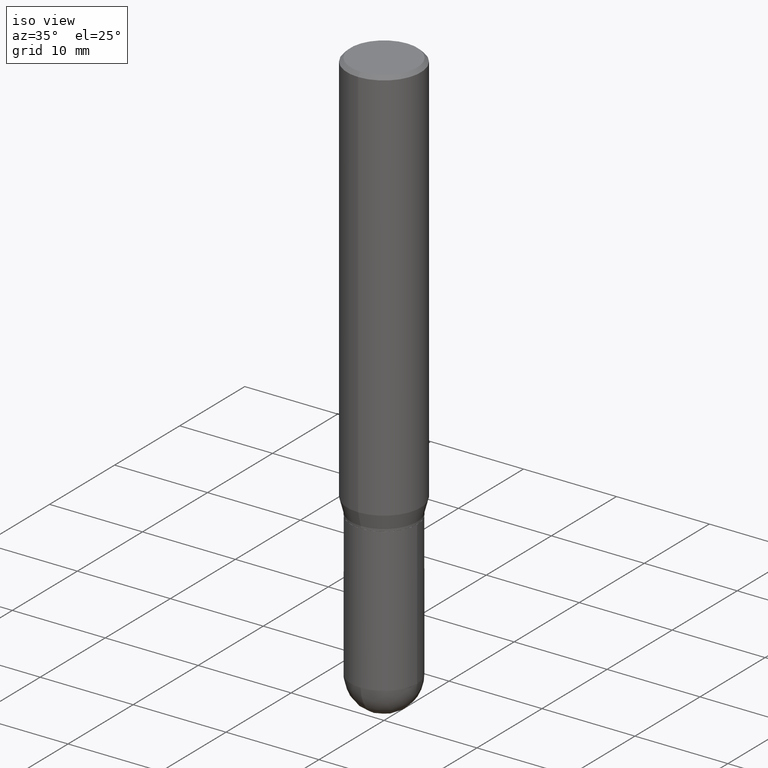
[diagram: clean part render]
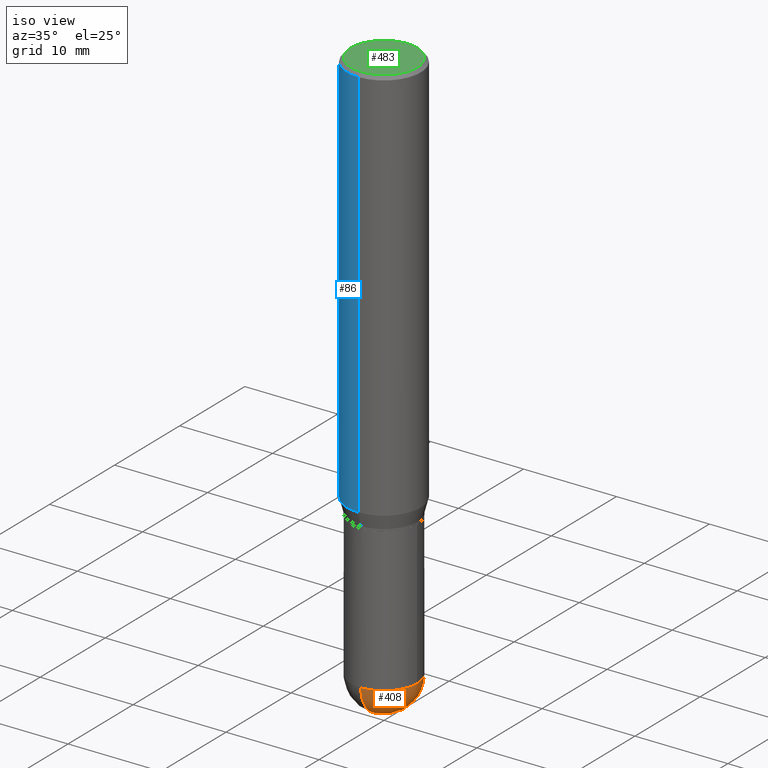
[diagram: same view with three faces highlighted in distinct colors, each labeled with its STEP entity id]
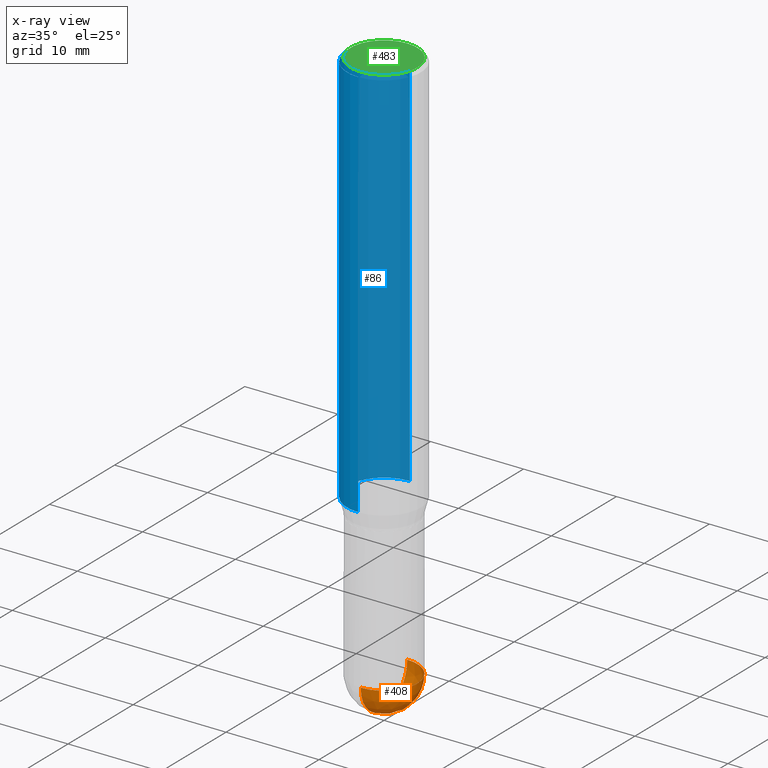
[diagram: x-ray of the same camera — body ghosted, the three highlighted faces saturated]
A machine part, iso view with three faces highlighted in distinct colors.
The next image is the same camera in x-ray (body ghosted, the three faces saturated) — at least one of them is partly hidden behind the body in this view.
Their STEP definitions:

[orange] entity #408 — the highlighted spherical surface has radius 3.5712 mm.
#12 = AXIS2_PLACEMENT_3D ( 'NONE', #504, #216, #428 ) ;
#23 = EDGE_CURVE ( 'NONE', #416, #292, #442, .T. ) ;
#34 = CARTESIAN_POINT ( 'NONE',  ( 5.769839101313211634E-29, -8.237801070866517629E-15, -2.359399999999999942 ) ) ;
#47 = DIRECTION ( 'NONE',  ( -7.105427357601001859E-15, -1.000000000000000000, 0.000000000000000000 ) ) ;
#48 = EDGE_CURVE ( 'NONE', #328, #292, #112, .T. ) ;
#59 = AXIS2_PLACEMENT_3D ( 'NONE', #279, #87, #47 ) ;
#87 = DIRECTION ( 'NONE',  ( -1.000000000000000000, 7.105427357601001070E-15, -4.926315508542082329E-29 ) ) ;
#112 = CIRCLE ( 'NONE', #399, 0.1406000000000000860 ) ;
#129 = DIRECTION ( 'NONE',  ( 1.000000000000000000, -6.982962677686270655E-15, 0.000000000000000000 ) ) ;
#131 = ORIENTED_EDGE ( 'NONE', *, *, #23, .F. ) ;
#154 = CARTESIAN_POINT ( 'NONE',  ( 0.1406000000000000583, -8.155751259403701439E-15, -2.359399999999999942 ) ) ;
#163 = CARTESIAN_POINT ( 'NONE',  ( 5.757815463287349061E-29, -8.255019604862529009E-15, -2.359399999999999942 ) ) ;
#188 = FACE_OUTER_BOUND ( 'NONE', #234, .T. ) ;
#189 = DIRECTION ( 'NONE',  ( 1.000000000000000000, -6.982962677686265922E-15, 4.883557194083112340E-29 ) ) ;
#201 = CIRCLE ( 'NONE', #489, 0.1406000000000000305 ) ;
#216 = DIRECTION ( 'NONE',  ( -2.445468806185136597E-29, 3.491481338843145583E-15, 1.000000000000000000 ) ) ;
#234 = EDGE_LOOP ( 'NONE', ( #331, #401, #131, #315 ) ) ;
#279 = CARTESIAN_POINT ( 'NONE',  ( 5.757815463287349061E-29, -8.255019604862529009E-15, -2.359399999999999942 ) ) ;
#281 = VERTEX_POINT ( 'NONE', #385 ) ;
#292 = VERTEX_POINT ( 'NONE', #375 ) ;
#311 = DIRECTION ( 'NONE',  ( -2.445468806185136597E-29, 3.491481338843145583E-15, 1.000000000000000000 ) ) ;
#313 = DIRECTION ( 'NONE',  ( 6.982962677686266711E-15, 1.000000000000000000, 0.000000000000000000 ) ) ;
#315 = ORIENTED_EDGE ( 'NONE', *, *, #450, .F. ) ;
#328 = VERTEX_POINT ( 'NONE', #470 ) ;
#329 = AXIS2_PLACEMENT_3D ( 'NONE', #350, #511, #439 ) ;
#331 = ORIENTED_EDGE ( 'NONE', *, *, #463, .F. ) ;
#350 = CARTESIAN_POINT ( 'NONE',  ( 5.757815463287349061E-29, -8.255019604862529009E-15, -2.359399999999999942 ) ) ;
#375 = CARTESIAN_POINT ( 'NONE',  ( 9.818045524827470871E-16, 0.1405999999999918426, -2.359400000000000386 ) ) ;
#385 = CARTESIAN_POINT ( 'NONE',  ( -9.990230864786434913E-16, -0.1406000000000083017, -2.359399999999999498 ) ) ;
#399 = AXIS2_PLACEMENT_3D ( 'NONE', #163, #189, #313 ) ;
#401 = ORIENTED_EDGE ( 'NONE', *, *, #48, .T. ) ;
#408 = ADVANCED_FACE ( 'NONE', ( #188 ), #466, .T. ) ;
#416 = VERTEX_POINT ( 'NONE', #154 ) ;
#428 = DIRECTION ( 'NONE',  ( 1.000000000000000000, -6.982962677686270655E-15, 0.000000000000000000 ) ) ;
#439 = DIRECTION ( 'NONE',  ( 6.982962677686265922E-15, 1.000000000000000000, -3.885985766236502230E-15 ) ) ;
#442 = CIRCLE ( 'NONE', #12, 0.1406000000000000305 ) ;
#450 = EDGE_CURVE ( 'NONE', #281, #416, #201, .T. ) ;
#463 = EDGE_CURVE ( 'NONE', #328, #281, #501, .T. ) ;
#466 = SPHERICAL_SURFACE ( 'NONE', #329, 0.1406000000000000860 ) ;
#470 = CARTESIAN_POINT ( 'NONE',  ( 6.107660196449910766E-29, -8.737312614105869844E-15, -2.500000000000000000 ) ) ;
#489 = AXIS2_PLACEMENT_3D ( 'NONE', #34, #311, #129 ) ;
#501 = CIRCLE ( 'NONE', #59, 0.1406000000000000860 ) ;
#504 = CARTESIAN_POINT ( 'NONE',  ( 5.769839101313211634E-29, -8.237801070866517629E-15, -2.359399999999999942 ) ) ;
#511 = DIRECTION ( 'NONE',  ( -1.000000000000000000, 6.982962677686265922E-15, -4.883557194083112340E-29 ) ) ;

[blue] entity #86 — the highlighted cylindrical surface (partial cylindrical patch) has radius 3.9688 mm, axis along (-0, 0, 1).
#10 = DIRECTION ( 'NONE',  ( -6.982962677686265133E-15, -1.000000000000000000, 3.496765431890256920E-15 ) ) ;
#37 = CARTESIAN_POINT ( 'NONE',  ( 0.000000000000000000, 0.000000000000000000, 0.000000000000000000 ) ) ;
#49 = DIRECTION ( 'NONE',  ( -2.445350919548012662E-29, 3.491650159217197762E-15, 1.000000000000000000 ) ) ;
#55 = LINE ( 'NONE', #140, #237 ) ;
#75 = AXIS2_PLACEMENT_3D ( 'NONE', #37, #351, #155 ) ;
#83 = ORIENTED_EDGE ( 'NONE', *, *, #301, .F. ) ;
#86 = ADVANCED_FACE ( 'NONE', ( #161 ), #265, .T. ) ;
#92 = AXIS2_PLACEMENT_3D ( 'NONE', #464, #285, #452 ) ;
#101 = CARTESIAN_POINT ( 'NONE',  ( 1.110223024625197561E-15, 0.1562499999999999445, -0.01500000000000049905 ) ) ;
#128 = ORIENTED_EDGE ( 'NONE', *, *, #491, .T. ) ;
#133 = AXIS2_PLACEMENT_3D ( 'NONE', #406, #49, #10 ) ;
#140 = CARTESIAN_POINT ( 'NONE',  ( 1.110223024625156343E-15, 0.1562500000000000000, -5.455703373776871627E-16 ) ) ;
#155 = DIRECTION ( 'NONE',  ( -6.982962677686265133E-15, -1.000000000000000000, 3.491650159217197762E-15 ) ) ;
#161 = FACE_OUTER_BOUND ( 'NONE', #249, .T. ) ;
#164 = EDGE_CURVE ( 'NONE', #286, #344, #240, .T. ) ;
#208 = ORIENTED_EDGE ( 'NONE', *, *, #239, .T. ) ;
#220 = CARTESIAN_POINT ( 'NONE',  ( 1.110223024625197561E-15, 0.1562499999999941436, -1.681593404861547514 ) ) ;
#225 = CARTESIAN_POINT ( 'NONE',  ( -1.091087918388478779E-15, -0.1562500000000000833, -0.01499999999999940617 ) ) ;
#237 = VECTOR ( 'NONE', #330, 39.37007874015748143 ) ;
#239 = EDGE_CURVE ( 'NONE', #255, #344, #493, .T. ) ;
#240 = CIRCLE ( 'NONE', #92, 0.1562500000000000000 ) ;
#249 = EDGE_LOOP ( 'NONE', ( #83, #128, #208, #347 ) ) ;
#255 = VERTEX_POINT ( 'NONE', #427 ) ;
#263 = VERTEX_POINT ( 'NONE', #220 ) ;
#265 = CYLINDRICAL_SURFACE ( 'NONE', #75, 0.1562500000000000000 ) ;
#285 = DIRECTION ( 'NONE',  ( -2.445350919548012662E-29, 3.491650159217197762E-15, 1.000000000000000000 ) ) ;
#286 = VERTEX_POINT ( 'NONE', #101 ) ;
#301 = EDGE_CURVE ( 'NONE', #263, #286, #55, .T. ) ;
#322 = VECTOR ( 'NONE', #341, 39.37007874015748143 ) ;
#330 = DIRECTION ( 'NONE',  ( -2.445350919548012662E-29, 3.491650159217197762E-15, 1.000000000000000000 ) ) ;
#341 = DIRECTION ( 'NONE',  ( -2.445350919548012662E-29, 3.491650159217197762E-15, 1.000000000000000000 ) ) ;
#344 = VERTEX_POINT ( 'NONE', #225 ) ;
#347 = ORIENTED_EDGE ( 'NONE', *, *, #164, .F. ) ;
#351 = DIRECTION ( 'NONE',  ( -2.445350919548012662E-29, 3.491650159217197762E-15, 1.000000000000000000 ) ) ;
#405 = CIRCLE ( 'NONE', #133, 0.1562500000000000000 ) ;
#406 = CARTESIAN_POINT ( 'NONE',  ( 4.112085978884057268E-29, -5.871535879823409448E-15, -1.681593404861546848 ) ) ;
#427 = CARTESIAN_POINT ( 'NONE',  ( -1.091087918388437956E-15, -0.1562500000000058842, -1.681593404861546404 ) ) ;
#452 = DIRECTION ( 'NONE',  ( -6.982962677686265133E-15, -1.000000000000000000, 3.496765431890256920E-15 ) ) ;
#461 = CARTESIAN_POINT ( 'NONE',  ( -1.091087918388478976E-15, -0.1562500000000000000, 5.455703373776871627E-16 ) ) ;
#464 = CARTESIAN_POINT ( 'NONE',  ( 3.668026379322007538E-31, -5.237475238825779930E-17, -0.01499999999999995261 ) ) ;
#491 = EDGE_CURVE ( 'NONE', #263, #255, #405, .T. ) ;
#493 = LINE ( 'NONE', #461, #322 ) ;

[green] entity #483 — the highlighted planar face has unit normal (0, -0, -1).
#2 = CARTESIAN_POINT ( 'NONE',  ( -1.130838019233645980E-45, 1.614692892681366548E-31, 4.624440648553888013E-17 ) ) ;
#17 = AXIS2_PLACEMENT_3D ( 'NONE', #241, #198, #364 ) ;
#44 = CARTESIAN_POINT ( 'NONE',  ( -1.130838019233645980E-45, 1.614692892681366548E-31, 4.624440648553888013E-17 ) ) ;
#51 = CIRCLE ( 'NONE', #366, 0.1412499999999999867 ) ;
#58 = CARTESIAN_POINT ( 'NONE',  ( -1.020499077168515012E-15, -0.1412499999999999867, 5.394399914749680895E-16 ) ) ;
#81 = ORIENTED_EDGE ( 'NONE', *, *, #414, .T. ) ;
#99 = EDGE_CURVE ( 'NONE', #193, #138, #51, .T. ) ;
#126 = DIRECTION ( 'NONE',  ( -6.982962677686265922E-15, -1.000000000000000000, 3.491650159217198157E-15 ) ) ;
#138 = VERTEX_POINT ( 'NONE', #421 ) ;
#157 = DIRECTION ( 'NONE',  ( -2.445350919548012662E-29, 3.491650159217197762E-15, 1.000000000000000000 ) ) ;
#159 = DIRECTION ( 'NONE',  ( -2.445350919548012662E-29, 3.491650159217197762E-15, 1.000000000000000000 ) ) ;
#193 = VERTEX_POINT ( 'NONE', #58 ) ;
#198 = DIRECTION ( 'NONE',  ( 2.445350919548012382E-29, -3.491650159217197762E-15, -1.000000000000000000 ) ) ;
#241 = CARTESIAN_POINT ( 'NONE',  ( 9.863434782231850151E-16, 0.1412499999999999867, -4.700733817466596737E-16 ) ) ;
#253 = AXIS2_PLACEMENT_3D ( 'NONE', #44, #159, #262 ) ;
#262 = DIRECTION ( 'NONE',  ( -6.982962677686265922E-15, -1.000000000000000000, 3.491650159217198157E-15 ) ) ;
#303 = CIRCLE ( 'NONE', #253, 0.1412499999999999867 ) ;
#338 = ORIENTED_EDGE ( 'NONE', *, *, #99, .T. ) ;
#364 = DIRECTION ( 'NONE',  ( 6.982962677686265922E-15, 1.000000000000000000, -3.491650159217197762E-15 ) ) ;
#366 = AXIS2_PLACEMENT_3D ( 'NONE', #2, #157, #126 ) ;
#404 = PLANE ( 'NONE',  #17 ) ;
#411 = FACE_OUTER_BOUND ( 'NONE', #486, .T. ) ;
#414 = EDGE_CURVE ( 'NONE', #138, #193, #303, .T. ) ;
#421 = CARTESIAN_POINT ( 'NONE',  ( 1.038715698305832292E-15, 0.1412499999999999867, -4.469511785038902676E-16 ) ) ;
#483 = ADVANCED_FACE ( 'NONE', ( #411 ), #404, .F. ) ;
#486 = EDGE_LOOP ( 'NONE', ( #81, #338 ) ) ;